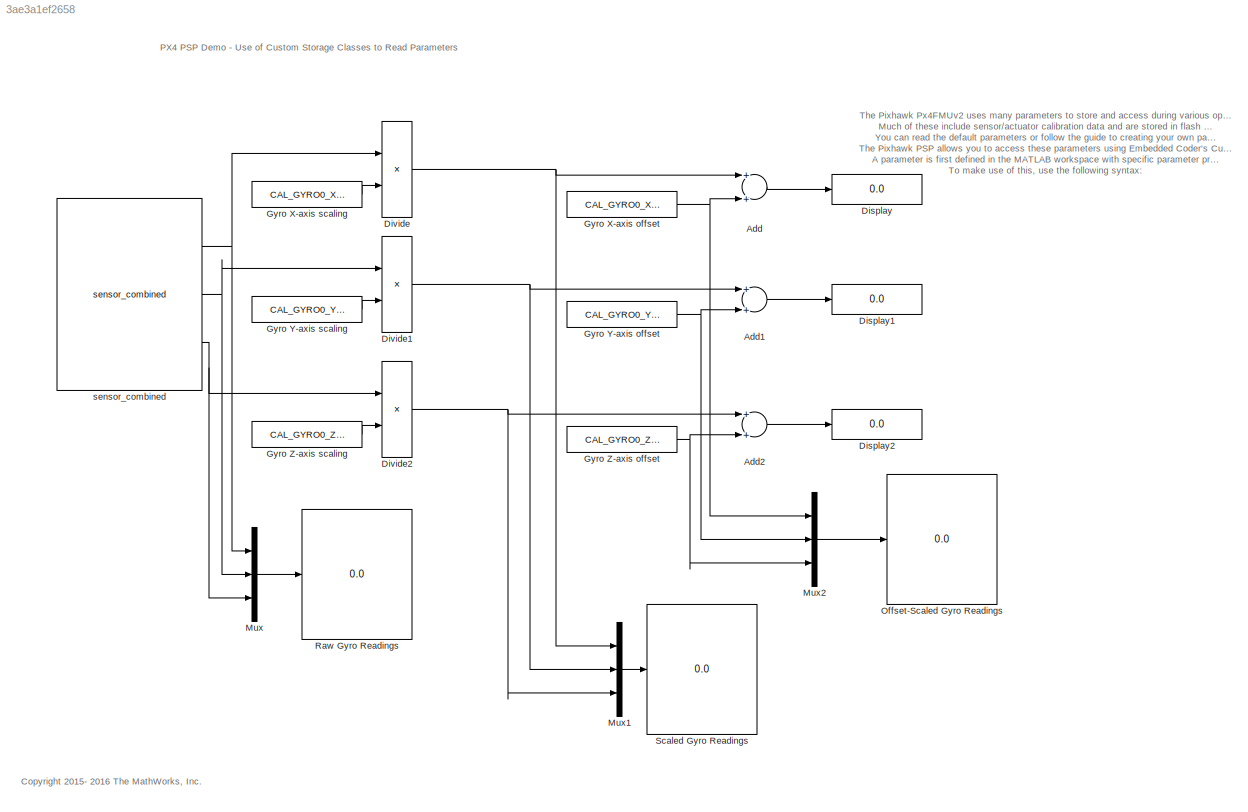
MODEL slx_3ae3a1ef2658
KIND model
CONFIG AbsTol = auto
CONFIG EnableMultiTasking = on
CONFIG FixedStep = 0.5
CONFIG InitFcn = CAL_GYRO0_XSCALE = Pixhawk_CSC.Parameter( {single(1), 'CAL_GYRO0_XSCALE'}  )\nCAL_GYRO0_YSCALE = Pixhawk_CSC.Parameter( {single(1), 'CAL_GYRO0_YSCALE'}  )\nCAL_GYRO0_ZSCALE = Pixhawk_CSC.Parameter( {single(1), 'CAL_GYRO0_ZSCALE'}  )\n\nCAL_GYRO0_XOFF = Pixhawk_CSC.Parameter( {single(0), 'CAL_GYRO0_XOFF'} )\nCAL_GYRO0_YOFF = Pixhawk_CSC.Parameter( {single(0), 'CAL_GYRO0_YOFF'} )\nCAL_GYRO0_ZOFF = Pixhawk...<+48ch>
CONFIG MaxStep = auto
CONFIG MinStep = auto
CONFIG RelTol = 1e-3
CONFIG SampleTimeConstraint = Unconstrained
CONFIG Solver = FixedStepAuto
CONFIG SolverName = FixedStepAuto
CONFIG StartTime = 0.0
CONFIG StopTime = inf
BLOCK [Sum] Add
  InputSameDT = off
  OutDataTypeStr = Inherit: Inherit via internal rule
  Ports = [2, 1]
  SaturateOnIntegerOverflow = off
BLOCK [Sum] Add1
  InputSameDT = off
  OutDataTypeStr = Inherit: Inherit via internal rule
  Ports = [2, 1]
  SaturateOnIntegerOverflow = off
BLOCK [Sum] Add2
  InputSameDT = off
  OutDataTypeStr = Inherit: Inherit via internal rule
  Ports = [2, 1]
  SaturateOnIntegerOverflow = off
BLOCK [Display] Display
  Decimation = 1
  Ports = [1]
BLOCK [Display] Display1
  Decimation = 1
  Ports = [1]
BLOCK [Display] Display2
  Decimation = 1
  Ports = [1]
BLOCK [Product] Divide
  InputSameDT = off
  Inputs = */
  OutDataTypeStr = Inherit: Inherit via internal rule
  Ports = [2, 1]
  RndMeth = Floor
  SaturateOnIntegerOverflow = off
BLOCK [Product] Divide1
  InputSameDT = off
  Inputs = */
  OutDataTypeStr = Inherit: Inherit via internal rule
  Ports = [2, 1]
  RndMeth = Floor
  SaturateOnIntegerOverflow = off
BLOCK [Product] Divide2
  InputSameDT = off
  Inputs = */
  OutDataTypeStr = Inherit: Inherit via internal rule
  Ports = [2, 1]
  RndMeth = Floor
  SaturateOnIntegerOverflow = off
BLOCK [Constant] Gyro X-axis offset	
  Value = CAL_GYRO0_XOFF
BLOCK [Constant] Gyro X-axis scaling
  Value = CAL_GYRO0_XSCALE
BLOCK [Constant] Gyro Y-axis offset
  Value = CAL_GYRO0_YOFF
BLOCK [Constant] Gyro Y-axis scaling
  Value = CAL_GYRO0_YSCALE
BLOCK [Constant] Gyro Z-axis offset
  Value = CAL_GYRO0_ZOFF
BLOCK [Constant] Gyro Z-axis scaling
  Value = CAL_GYRO0_ZSCALE
BLOCK [Mux] Mux
  DisplayOption = bar
  Inputs = 3
  Ports = [3, 1]
BLOCK [Mux] Mux1
  DisplayOption = bar
  Inputs = 3
  Ports = [3, 1]
BLOCK [Mux] Mux2
  DisplayOption = bar
  Inputs = 3
  Ports = [3, 1]
BLOCK [Display] Offset-Scaled Gyro Readings
  Decimation = 1
  Ports = [1]
BLOCK [Display] Raw Gyro Readings
  Decimation = 1
  Ports = [1]
BLOCK [Display] Scaled Gyro Readings
  Decimation = 1
  Ports = [1]
BLOCK [Reference] sensor_combined  REF=pixhawk_slib_sensors_actuators/sensor_combined
  Ports = [0, 3]
  SourceBlock = pixhawk_slib_sensors_actuators/sensor_combined
  SourceProductName = Pixhawk Target Blocks
  SourceType = PX4_Sensor_Combined
ANNOTATION (root): PX4 PSP Demo - Use of Custom Storage Classes to Read Parameters
ANNOTATION (root): The Pixhawk Px4FMUv2 uses many parameters to store and access during various operations. Much of these include sensor/actuator calibration data and are stored in flash memory which is accessible by MTD via NuttX. You can read the default parameters or follow the guide to creating your own parameters . The Pixhawk PSP allows you to access these parameters using Embedded Coder's Custom Storage Class...<+895ch>
ANNOTATION (root): <copyright redacted>
LINE Add1:1 -> Display1:1
LINE Add2:1 -> Display2:1
LINE Add:1 -> Display:1
NET Divide1:1 -> Add1:1, Mux1:2
NET Divide2:1 -> Add2:1, Mux1:3
NET Divide:1 -> Add:1, Mux1:1
NET Gyro X-axis offset	:1 -> Add:2, Mux2:1
LINE Gyro X-axis scaling:1 -> Divide:2
NET Gyro Y-axis offset:1 -> Add1:2, Mux2:2
LINE Gyro Y-axis scaling:1 -> Divide1:2
NET Gyro Z-axis offset:1 -> Add2:2, Mux2:3
LINE Gyro Z-axis scaling:1 -> Divide2:2
LINE Mux1:1 -> Scaled Gyro Readings:1
LINE Mux2:1 -> Offset-Scaled Gyro Readings:1
LINE Mux:1 -> Raw Gyro Readings:1
NET sensor_combined:1 -> Divide:1, Mux:1
NET sensor_combined:2 -> Divide1:1, Mux:2
NET sensor_combined:3 -> Divide2:1, Mux:3
note: NET lines group one-source signal fan-out (src -> all destinations, sorted); 1:1 wires keep LINE
